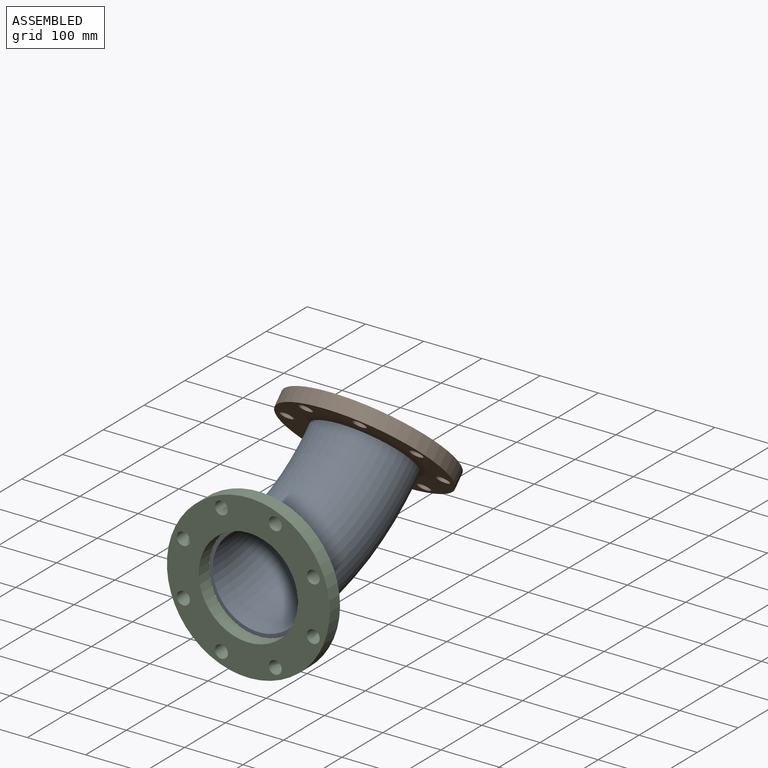
[diagram: assembled view]
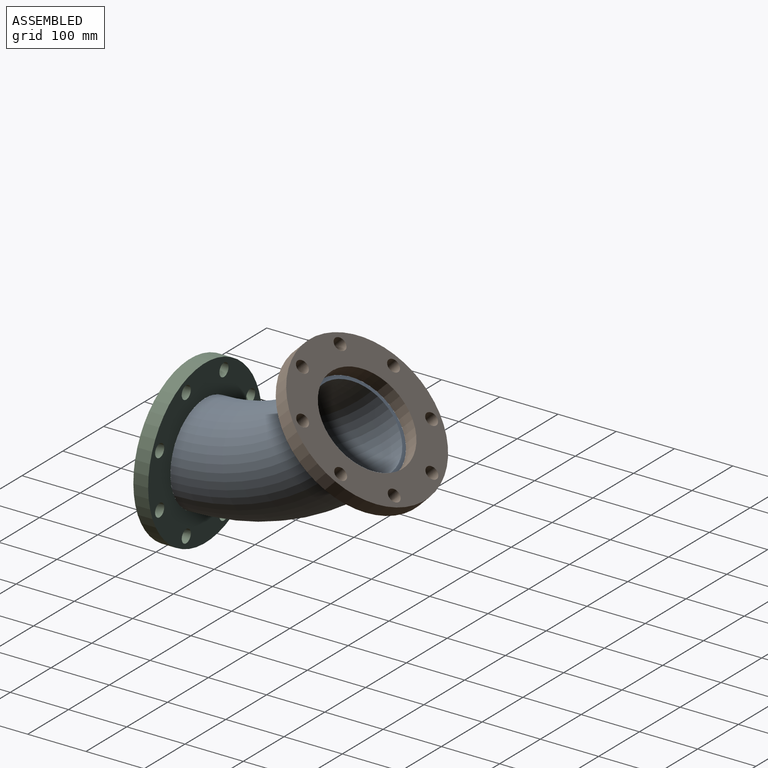
[diagram: assembled view, second angle]
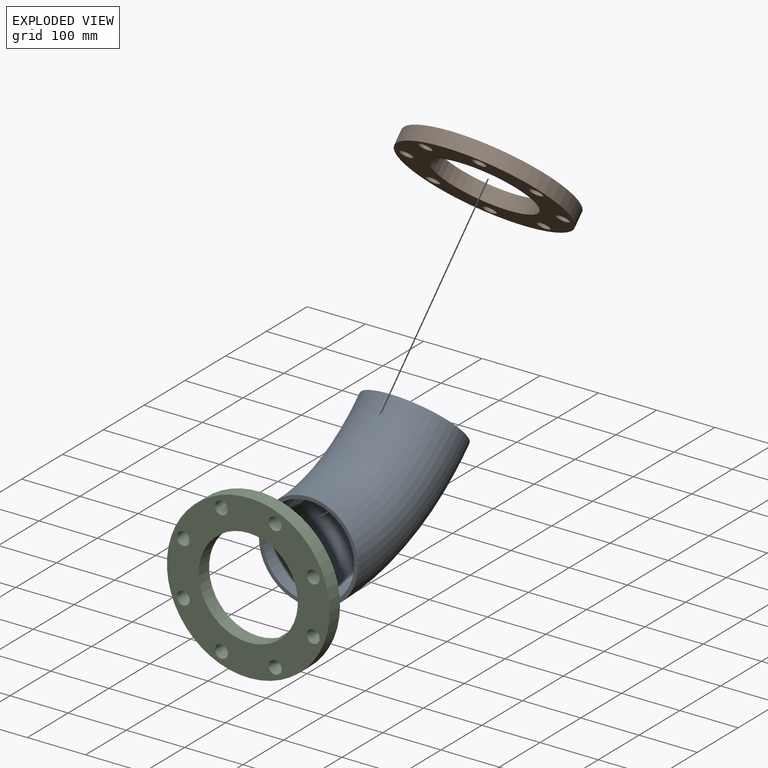
[diagram: exploded view]
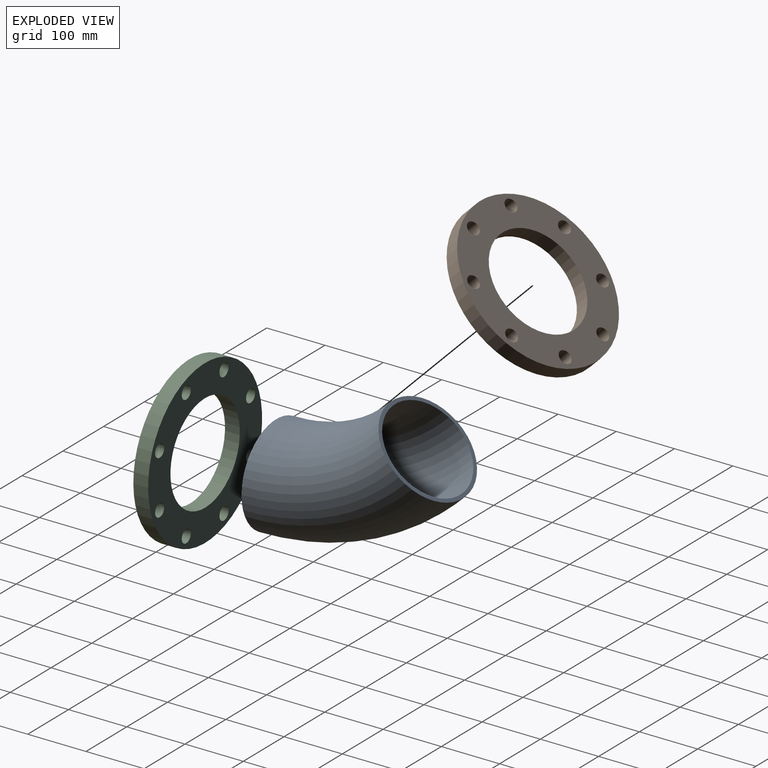
[diagram: exploded view, second angle]
ASSEMBLY  parts=3 mates=4
PART A: 4 faces, bbox 170.2x346.7x290.3 mm
  f0: torus R=367.93mm, axis (1,0,0), area 142963.7mm2, adj f1,f2
  f1: plane 170.18x170.18mm, normal (0,-1,0), area 3268.3mm2, adj f0,f3
  f2: plane 170.18x120.34mm, normal (0,0.71,0.71), area 3268.3mm2, adj f0,f3
  f3: torus R=367.93mm, axis (1,0,0), area 154493mm2, adj f1,f2
PART B: 12 faces, bbox 279.4x25.4x279.4 mm
  f0: cylinder r=85.09mm len=170.18mm, axis (0,1,0), area 13579.8mm2, adj f2,f3
  f1: cylinder r=139.7mm len=279.4mm, axis (0,1,0), area 22295.1mm2, adj f2,f3
  f2: plane 279.4x279.4mm, normal (0,-1,0), area 35461.9mm2, adj f0,f1,f4,f5,f6,f7,f8,f9
  f3: plane 279.4x279.4mm, normal (0,1,0), area 35461.9mm2, adj f0,f1,f4,f5,f6,f7,f8,f9
  f4: cylinder r=11.11mm len=25.4mm, axis (0,-1,0), area 1773.5mm2, adj f2,f3
  f5: cylinder r=11.11mm len=25.4mm, axis (0,-1,0), area 1773.5mm2, adj f2,f3
  f6: cylinder r=11.11mm len=25.4mm, axis (0,-1,0), area 1773.5mm2, adj f2,f3
  f7: cylinder r=11.11mm len=25.4mm, axis (0,-1,0), area 1773.5mm2, adj f2,f3
  f8: cylinder r=11.11mm len=25.4mm, axis (0,-1,0), area 1773.5mm2, adj f2,f3
  f9: cylinder r=11.11mm len=25.4mm, axis (0,-1,0), area 1773.5mm2, adj f2,f3
  f10: cylinder r=11.11mm len=25.4mm, axis (0,-1,0), area 1773.5mm2, adj f2,f3
  f11: cylinder r=11.11mm len=25.4mm, axis (0,-1,0), area 1773.5mm2, adj f2,f3
PART C: same geometry as B
PLACE A t=(-48.39,-49.39,38.55)mm
PLACE B rot(axis=(0.89,-0.43,-0.18),50deg) t=(-48.39,228.73,164.28)mm
PLACE C rot(axis=(0,1,0),22.5deg) t=(-48.39,-49.39,38.55)mm
MATE planar C.f0 <-> A.f1  axis (0,1,0) through (-48.39,-49.39,38.55)mm
MATE cylindrical A.f2 <-> B.f0  axis (0,0.71,0.71) through (-48.39,210.77,146.32)mm
MATE cylindrical C.f0 <-> A.f1  axis (0,1,0) through (-48.39,-62.09,38.55)mm
MATE planar B.f0 <-> A.f2  axis (0,-0.71,-0.71) through (-48.39,210.77,146.32)mm
